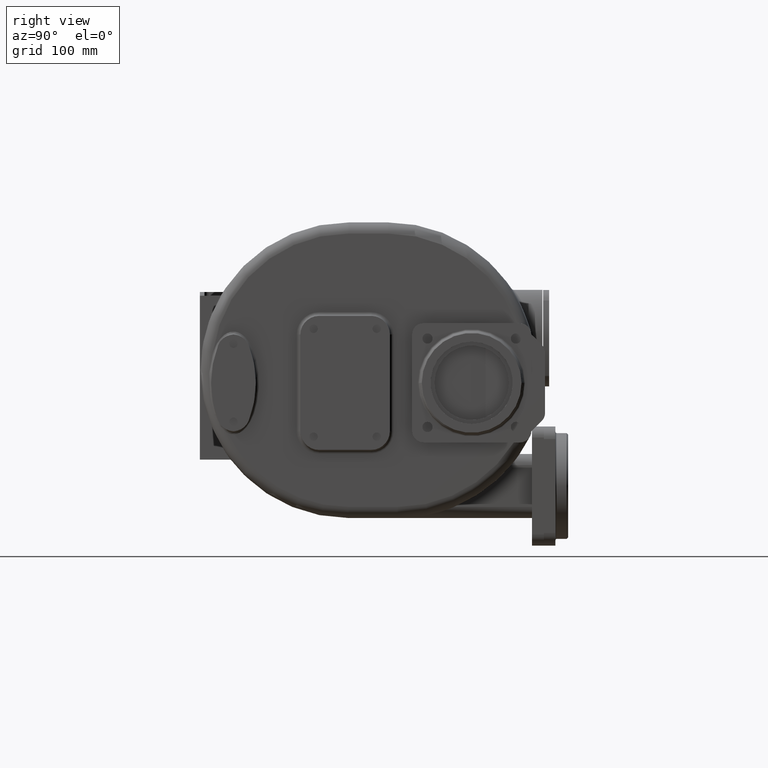
[diagram: clean part render]
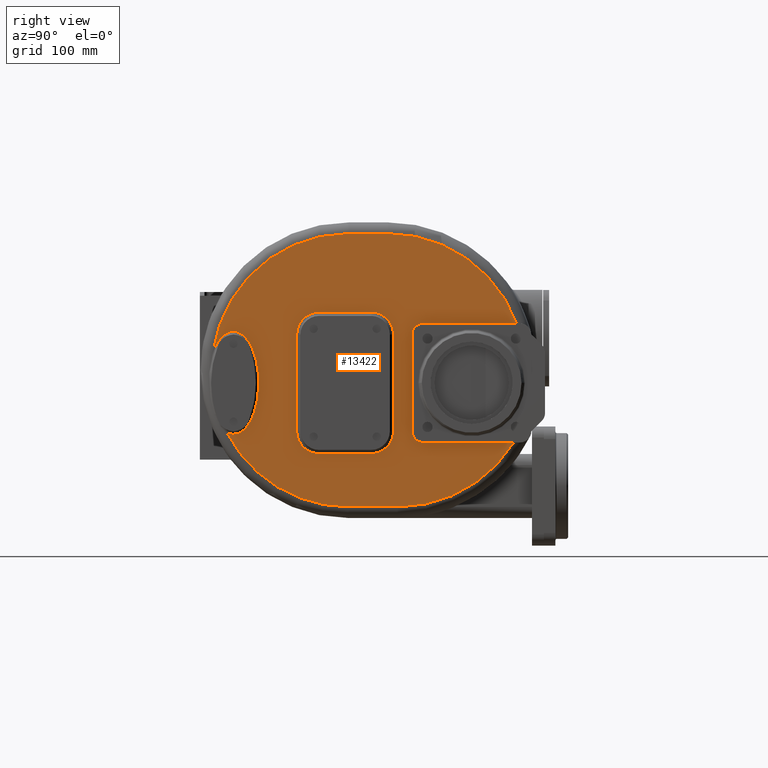
[diagram: same view with one face highlighted and labeled with its STEP entity id]
A machine part, right view. The second image highlights one B-rep face of the part: STEP entity #13422.
In plain terms, the highlighted planar face has unit normal (-1, 0, 0).
Its self-contained STEP definition (entity closure, byte-faithful):
#1564=DIRECTION('',(0.E0,1.E0,0.E0));
#1565=VECTOR('',#1564,1.216074309109E2);
#1566=CARTESIAN_POINT('',(1.85E2,3.E2,-9.7E1));
#1567=LINE('',#1566,#1565);
#1718=DIRECTION('',(0.E0,0.E0,-1.E0));
#1719=VECTOR('',#1718,1.3E2);
#1720=CARTESIAN_POINT('',(1.85E2,2.85E2,4.8E1));
#1721=LINE('',#1720,#1719);
#1726=CARTESIAN_POINT('',(1.85E2,3.E2,-8.2E1));
#1727=DIRECTION('',(-1.E0,0.E0,0.E0));
#1728=DIRECTION('',(0.E0,0.E0,-1.E0));
#1729=AXIS2_PLACEMENT_3D('',#1726,#1727,#1728);
#1731=CARTESIAN_POINT('',(1.850000005377E2,3.625590009268E1,-8.380700360577E1));
#1732=CARTESIAN_POINT('',(1.850000010474E2,3.644233185227E1,-8.390271979171E1));
#1733=CARTESIAN_POINT('',(1.849999995139E2,3.681483443033E1,-8.408726570567E1));
#1734=CARTESIAN_POINT('',(1.850000001302E2,3.737236600912E1,-8.434382731485E1));
#1735=CARTESIAN_POINT('',(1.849999999651E2,3.792832459514E1,-8.458042790233E1));
#1736=CARTESIAN_POINT('',(1.850000000094E2,3.848249259829E1,-8.479738974309E1));
#1737=CARTESIAN_POINT('',(1.849999999974E2,3.903461455280E1,-8.499507185047E1));
#1738=CARTESIAN_POINT('',(1.850000000009E2,3.958443812879E1,-8.517385338332E1));
#1739=CARTESIAN_POINT('',(1.849999999989E2,4.013180420925E1,-8.533409415977E1));
#1740=CARTESIAN_POINT('',(1.850000000034E2,4.067731638974E1,-8.547632499711E1));
#1741=CARTESIAN_POINT('',(1.849999999877E2,4.122150457814E1,-8.560105536925E1));
#1742=CARTESIAN_POINT('',(1.850000000460E2,4.176510983590E1,-8.570868341523E1));
#1743=CARTESIAN_POINT('',(1.849999998283E2,4.230805306893E1,-8.579930381958E1));
#1744=CARTESIAN_POINT('',(1.850000006406E2,4.284993283136E1,-8.587303444513E1));
#1745=CARTESIAN_POINT('',(1.849999976092E2,4.339042353394E1,-8.593007338048E1));
#1746=CARTESIAN_POINT('',(1.850000089227E2,4.392919762085E1,-8.597058278401E1));
#1747=CARTESIAN_POINT('',(1.849999666999E2,4.446599704520E1,-8.599466012178E1));
#1748=CARTESIAN_POINT('',(1.850000717517E2,4.482225118187E1,-8.599999905024E1));
#1749=CARTESIAN_POINT('',(1.850000711929E2,4.499999992839E1,-8.599999999620E1));
#1751=CARTESIAN_POINT('',(1.850000711929E2,4.499999992839E1,-8.599999999620E1));
#1752=CARTESIAN_POINT('',(1.850001252122E2,4.518950684331E1,-8.599989870260E1));
#1753=CARTESIAN_POINT('',(1.849999418888E2,4.556946980294E1,-8.599322555239E1));
#1754=CARTESIAN_POINT('',(1.850000155708E2,4.614285532402E1,-8.596554469983E1));
#1755=CARTESIAN_POINT('',(1.849999958278E2,4.671790287241E1,-8.591921490160E1));
#1756=CARTESIAN_POINT('',(1.850000011179E2,4.729342825618E1,-8.585447501856E1));
#1757=CARTESIAN_POINT('',(1.849999997004E2,4.786819630356E1,-8.577130638975E1));
#1758=CARTESIAN_POINT('',(1.850000000803E2,4.844056075272E1,-8.566993653368E1));
#1759=CARTESIAN_POINT('',(1.849999999785E2,4.901154720405E1,-8.555009547117E1));
#1760=CARTESIAN_POINT('',(1.850000000058E2,4.958341881687E1,-8.541092378018E1));
#1761=CARTESIAN_POINT('',(1.849999999985E2,5.015822642245E1,-8.525168364917E1));
#1762=CARTESIAN_POINT('',(1.850000000004E2,5.073614453723E1,-8.507193670991E1));
#1763=CARTESIAN_POINT('',(1.849999999999E2,5.131729604752E1,-8.487119471345E1));
#1764=CARTESIAN_POINT('',(1.85E2,5.190171732239E1,-8.464891730547E1));
#1765=CARTESIAN_POINT('',(1.85E2,5.248934587449E1,-8.440452518904E1));
#1766=CARTESIAN_POINT('',(1.85E2,5.307995156450E1,-8.413744288156E1));
#1767=CARTESIAN_POINT('',(1.85E2,5.367325762158E1,-8.384703677398E1));
#1768=CARTESIAN_POINT('',(1.85E2,5.426876653845E1,-8.353276263190E1));
#1769=CARTESIAN_POINT('',(1.85E2,5.486700629484E1,-8.319367839178E1));
#1770=CARTESIAN_POINT('',(1.85E2,5.546920099925E1,-8.282824995882E1));
#1771=CARTESIAN_POINT('',(1.85E2,5.607631298691E1,-8.243486265218E1));
#1772=CARTESIAN_POINT('',(1.85E2,5.668876844080E1,-8.201204680469E1));
#1773=CARTESIAN_POINT('',(1.85E2,5.730606315073E1,-8.155888062092E1));
#1774=CARTESIAN_POINT('',(1.85E2,5.792760292688E1,-8.107452987500E1));
#1775=CARTESIAN_POINT('',(1.85E2,5.855335905495E1,-8.055758564383E1));
#1776=CARTESIAN_POINT('',(1.85E2,5.918397150765E1,-8.000596171991E1));
#1777=CARTESIAN_POINT('',(1.85E2,5.981972614713E1,-7.941770282844E1));
#1778=CARTESIAN_POINT('',(1.85E2,6.046065919755E1,-7.879100216395E1));
#1779=CARTESIAN_POINT('',(1.85E2,6.110666118275E1,-7.812406059830E1));
#1780=CARTESIAN_POINT('',(1.85E2,6.175767607498E1,-7.741461600119E1));
#1781=CARTESIAN_POINT('',(1.85E2,6.241353893448E1,-7.666046138290E1));
#1782=CARTESIAN_POINT('',(1.85E2,6.307392394965E1,-7.585961432962E1));
#1783=CARTESIAN_POINT('',(1.85E2,6.373847933698E1,-7.500974785608E1));
#1784=CARTESIAN_POINT('',(1.85E2,6.440694003495E1,-7.410809943113E1));
#1785=CARTESIAN_POINT('',(1.85E2,6.507891382813E1,-7.315217800947E1));
#1786=CARTESIAN_POINT('',(1.85E2,6.575381821424E1,-7.213940442307E1));
#1787=CARTESIAN_POINT('',(1.85E2,6.643084945217E1,-7.106700698512E1));
#1788=CARTESIAN_POINT('',(1.85E2,6.710919631253E1,-6.993251973891E1));
#1789=CARTESIAN_POINT('',(1.85E2,6.778781744856E1,-6.873333426582E1));
#1790=CARTESIAN_POINT('',(1.85E2,6.846552408881E1,-6.746676728806E1));
#1791=CARTESIAN_POINT('',(1.85E2,6.914112449358E1,-6.613040379644E1));
#1792=CARTESIAN_POINT('',(1.85E2,6.981299159798E1,-6.472181303130E1));
#1793=CARTESIAN_POINT('',(1.85E2,7.047960206289E1,-6.323881832511E1));
#1794=CARTESIAN_POINT('',(1.85E2,7.113901559639E1,-6.167942909323E1));
#1795=CARTESIAN_POINT('',(1.85E2,7.178934349214E1,-6.004185513991E1));
#1796=CARTESIAN_POINT('',(1.85E2,7.242830233693E1,-5.832477658584E1));
#1797=CARTESIAN_POINT('',(1.85E2,7.305364066987E1,-5.652714015464E1));
#1798=CARTESIAN_POINT('',(1.85E2,7.366275183164E1,-5.464849392524E1));
#1799=CARTESIAN_POINT('',(1.85E2,7.425312341134E1,-5.268866940943E1));
#1800=CARTESIAN_POINT('',(1.85E2,7.482187926457E1,-5.064830980052E1));
#1801=CARTESIAN_POINT('',(1.85E2,7.536633102629E1,-4.852833233359E1));
#1802=CARTESIAN_POINT('',(1.85E2,7.588342740316E1,-4.633073034330E1));
#1803=CARTESIAN_POINT('',(1.85E2,7.637040060691E1,-4.405772228374E1));
#1804=CARTESIAN_POINT('',(1.85E2,7.682419360171E1,-4.171279891077E1));
#1805=CARTESIAN_POINT('',(1.85E2,7.724207719205E1,-3.929961601283E1));
#1806=CARTESIAN_POINT('',(1.85E2,7.762121705471E1,-3.682316573896E1));
#1807=CARTESIAN_POINT('',(1.85E2,7.795902742657E1,-3.428871071122E1));
#1808=CARTESIAN_POINT('',(1.85E2,7.825316915739E1,-3.170247622063E1));
#1809=CARTESIAN_POINT('',(1.85E2,7.850134511008E1,-2.907135330018E1));
#1810=CARTESIAN_POINT('',(1.85E2,7.870187448035E1,-2.640248987455E1));
#1811=CARTESIAN_POINT('',(1.85E2,7.885304046993E1,-2.370409072312E1));
#1812=CARTESIAN_POINT('',(1.85E2,7.895375342613E1,-2.098425461856E1));
#1813=CARTESIAN_POINT('',(1.85E2,7.900324092879E1,-1.825168290558E1));
#1814=CARTESIAN_POINT('',(1.85E2,7.900098781827E1,-1.551523666799E1));
#1815=CARTESIAN_POINT('',(1.85E2,7.894719500861E1,-1.278374435512E1));
#1816=CARTESIAN_POINT('',(1.85E2,7.884216264602E1,-1.006591450731E1));
#1817=CARTESIAN_POINT('',(1.85E2,7.868676166932E1,-7.370535469734E0));
#1818=CARTESIAN_POINT('',(1.85E2,7.848232314442E1,-4.705716672129E0));
#1819=CARTESIAN_POINT('',(1.85E2,7.823023659222E1,-2.079207344545E0));
#1820=CARTESIAN_POINT('',(1.85E2,7.793259805944E1,5.013647148972E-1));
#1821=CARTESIAN_POINT('',(1.85E2,7.759147194115E1,3.029710909365E0));
#1822=CARTESIAN_POINT('',(1.85E2,7.720928791931E1,5.499405603073E0));
#1823=CARTESIAN_POINT('',(1.85E2,7.678876281844E1,7.905282605819E0));
#1824=CARTESIAN_POINT('',(1.85E2,7.633249191919E1,1.024269332079E1));
#1825=CARTESIAN_POINT('',(1.85E2,7.584353498817E1,1.250762699480E1));
#1826=CARTESIAN_POINT('',(1.85E2,7.532460537244E1,1.469717380367E1));
#1827=CARTESIAN_POINT('',(1.85E2,7.477880358759E1,1.680869239518E1));
#1828=CARTESIAN_POINT('',(1.85E2,7.420886448877E1,1.884072404745E1));
#1829=CARTESIAN_POINT('',(1.85E2,7.361774827512E1,2.079201015275E1));
#1830=CARTESIAN_POINT('',(1.85E2,7.300807439108E1,2.266228769933E1));
#1831=CARTESIAN_POINT('',(1.85E2,7.238256612715E1,2.445151260150E1));
#1832=CARTESIAN_POINT('',(1.85E2,7.174360569278E1,2.616041002525E1));
#1833=CARTESIAN_POINT('',(1.85E2,7.109361378832E1,2.778992212320E1));
#1834=CARTESIAN_POINT('',(1.85E2,7.043467186250E1,2.934152890162E1));
#1835=CARTESIAN_POINT('',(1.85E2,6.976885832766E1,3.081689665170E1));
#1836=CARTESIAN_POINT('',(1.85E2,6.909792427296E1,3.221809702129E1));
#1837=CARTESIAN_POINT('',(1.85E2,6.842354274433E1,3.354729396418E1));
#1838=CARTESIAN_POINT('',(1.85E2,6.774721054479E1,3.480693316483E1));
#1839=CARTESIAN_POINT('',(1.85E2,6.707015733650E1,3.599941680132E1));
#1840=CARTESIAN_POINT('',(1.85E2,6.639364343639E1,3.712746266736E1));
#1841=CARTESIAN_POINT('',(1.85E2,6.571853002673E1,3.819364170201E1));
#1842=CARTESIAN_POINT('',(1.85E2,6.504561792590E1,3.920068128407E1));
#1843=CARTESIAN_POINT('',(1.85E2,6.437568578852E1,4.015133665570E1));
#1844=CARTESIAN_POINT('',(1.85E2,6.370916111379E1,4.104814521698E1));
#1845=CARTESIAN_POINT('',(1.85E2,6.304638184767E1,4.189380253273E1));
#1846=CARTESIAN_POINT('',(1.85E2,6.238783783456E1,4.269077678348E1));
#1847=CARTESIAN_POINT('',(1.85E2,6.173375724101E1,4.344131690342E1));
#1848=CARTESIAN_POINT('',(1.85E2,6.108421512661E1,4.414777606723E1));
#1849=CARTESIAN_POINT('',(1.85E2,6.043944642871E1,4.481230613829E1));
#1850=CARTESIAN_POINT('',(1.85E2,5.979954639988E1,4.543685539750E1));
#1851=CARTESIAN_POINT('',(1.85E2,5.916442836045E1,4.602341481491E1));
#1852=CARTESIAN_POINT('',(1.85E2,5.853413008023E1,4.657381022052E1));
#1853=CARTESIAN_POINT('',(1.85E2,5.790862846089E1,4.708970054215E1));
#1854=CARTESIAN_POINT('',(1.85E2,5.728772460407E1,4.757274691636E1));
#1855=CARTESIAN_POINT('',(1.85E2,5.667133613891E1,4.802443759764E1));
#1856=CARTESIAN_POINT('',(1.85E2,5.605936994374E1,4.844613912642E1));
#1857=CARTESIAN_POINT('',(1.85E2,5.545158233253E1,4.883919578085E1));
#1858=CARTESIAN_POINT('',(1.85E2,5.484785081526E1,4.920476920419E1));
#1859=CARTESIAN_POINT('',(1.85E2,5.424805552540E1,4.954395436310E1));
#1860=CARTESIAN_POINT('',(1.85E2,5.365196738629E1,4.985780495307E1));
#1861=CARTESIAN_POINT('',(1.85E2,5.305931618534E1,5.014728002577E1));
#1862=CARTESIAN_POINT('',(1.85E2,5.246979983289E1,5.041331324403E1));
#1863=CARTESIAN_POINT('',(1.85E2,5.188309189676E1,5.065672244706E1));
#1864=CARTESIAN_POINT('',(1.849999999999E2,5.129915568915E1,5.087809952217E1));
#1865=CARTESIAN_POINT('',(1.850000000002E2,5.071795471106E1,5.107808157176E1));
#1866=CARTESIAN_POINT('',(1.849999999991E2,5.013934085642E1,5.125725583326E1));
#1867=CARTESIAN_POINT('',(1.850000000033E2,4.956272474974E1,5.141620161068E1));
#1868=CARTESIAN_POINT('',(1.849999999875E2,4.898758472486E1,5.155547560170E1));
#1869=CARTESIAN_POINT('',(1.850000000466E2,4.841323091236E1,5.167556339485E1));
#1870=CARTESIAN_POINT('',(1.849999998262E2,4.783983670476E1,5.177660684976E1));
#1871=CARTESIAN_POINT('',(1.850000006485E2,4.726778398452E1,5.185873901405E1));
#1872=CARTESIAN_POINT('',(1.849999975798E2,4.669741570136E1,5.192222837044E1));
#1873=CARTESIAN_POINT('',(1.850000090325E2,4.612906037439E1,5.196729468082E1));
#1874=CARTESIAN_POINT('',(1.849999662903E2,4.556296935055E1,5.199407075726E1));
#1875=CARTESIAN_POINT('',(1.850000726344E2,4.518737295131E1,5.199999891831E1));
#1876=CARTESIAN_POINT('',(1.850000719978E2,4.500000007358E1,5.199999999610E1));
#1878=CARTESIAN_POINT('',(1.850000719978E2,4.500000007358E1,5.199999999610E1));
#1879=CARTESIAN_POINT('',(1.850001267406E2,4.481104877648E1,5.199989710667E1));
#1880=CARTESIAN_POINT('',(1.849999411795E2,4.443209167657E1,5.199324911120E1));
#1881=CARTESIAN_POINT('',(1.850000157609E2,4.385983143286E1,5.196568575622E1));
#1882=CARTESIAN_POINT('',(1.849999957769E2,4.328572785387E1,5.191952317161E1));
#1883=CARTESIAN_POINT('',(1.850000011316E2,4.271109534493E1,5.185500713247E1));
#1884=CARTESIAN_POINT('',(1.849999996968E2,4.213731854506E1,5.177213984082E1));
#1885=CARTESIAN_POINT('',(1.850000000812E2,4.156618035811E1,5.167119011036E1));
#1886=CARTESIAN_POINT('',(1.849999999782E2,4.099647119165E1,5.155188139042E1));
#1887=CARTESIAN_POINT('',(1.850000000058E2,4.042593302348E1,5.141334805671E1));
#1888=CARTESIAN_POINT('',(1.849999999984E2,3.985262508561E1,5.125487010647E1));
#1889=CARTESIAN_POINT('',(1.850000000004E2,3.927632647611E1,5.107602296878E1));
#1890=CARTESIAN_POINT('',(1.849999999999E2,3.869678735023E1,5.087628877304E1));
#1891=CARTESIAN_POINT('',(1.85E2,3.811385592961E1,5.065508802725E1));
#1892=CARTESIAN_POINT('',(1.85E2,3.752754232303E1,5.041181312395E1));
#1893=CARTESIAN_POINT('',(1.85E2,3.693820782815E1,5.014593994828E1));
#1894=CARTESIAN_POINT('',(1.85E2,3.634620210372E1,4.985688601010E1));
#1895=CARTESIAN_POINT('',(1.85E2,3.575217335100E1,4.954418577109E1));
#1896=CARTESIAN_POINT('',(1.85E2,3.515538192979E1,4.920678767335E1));
#1897=CARTESIAN_POINT('',(1.85E2,3.455459162316E1,4.884315301035E1));
#1898=CARTESIAN_POINT('',(1.85E2,3.394876887882E1,4.845161880231E1));
#1899=CARTESIAN_POINT('',(1.85E2,3.333765505204E1,4.803082767401E1));
#1900=CARTESIAN_POINT('',(1.85E2,3.272176433756E1,4.757988051193E1));
#1901=CARTESIAN_POINT('',(1.85E2,3.210171542287E1,4.709799173881E1));
#1902=CARTESIAN_POINT('',(1.85E2,3.147741630684E1,4.658368658378E1));
#1903=CARTESIAN_POINT('',(1.85E2,3.084834757465E1,4.603497749444E1));
#1904=CARTESIAN_POINT('',(1.85E2,3.021427767288E1,4.544998579026E1));
#1905=CARTESIAN_POINT('',(1.85E2,2.957503325135E1,4.482678086557E1));
#1906=CARTESIAN_POINT('',(1.85E2,2.893059157455E1,4.416347971534E1));
#1907=CARTESIAN_POINT('',(1.85E2,2.828109530975E1,4.345792199950E1));
#1908=CARTESIAN_POINT('',(1.85E2,2.76268049E1,4.270800238143E1));
#1909=CARTESIAN_POINT('',(1.85E2,2.696814925223E1,4.191186811357E1));
#1910=CARTESIAN_POINT('',(1.85E2,2.630540192496E1,4.106723291169E1));
#1911=CARTESIAN_POINT('',(1.85E2,2.563881894602E1,4.017133731290E1));
#1912=CARTESIAN_POINT('',(1.849999999998E2,2.496879187446E1,3.922167441618E1));
#1913=CARTESIAN_POINT('',(1.850000000006E2,2.429586468350E1,3.821577892319E1));
#1914=CARTESIAN_POINT('',(1.849999999978E2,2.362088801954E1,3.715098452631E1));
#1915=CARTESIAN_POINT('',(1.850000000083E2,2.294474268941E1,3.602493122796E1));
#1916=CARTESIAN_POINT('',(1.849999999692E2,2.226832437395E1,3.483503023584E1));
#1917=CARTESIAN_POINT('',(1.850000001151E2,2.159273995515E1,3.357841062375E1));
#1918=CARTESIAN_POINT('',(1.849999995706E2,2.091912409746E1,3.225263469886E1));
#1919=CARTESIAN_POINT('',(1.850000016025E2,2.024922447930E1,3.085567739919E1));
#1920=CARTESIAN_POINT('',(1.849999940194E2,1.958472336326E1,2.938571740279E1));
#1921=CARTESIAN_POINT('',(1.850000223200E2,1.892733010295E1,2.784062397819E1));
#1922=CARTESIAN_POINT('',(1.849999167007E2,1.827888125732E1,2.621846207342E1));
#1923=CARTESIAN_POINT('',(1.850001794850E2,1.785375017846E1,2.508413205959E1));
#1924=CARTESIAN_POINT('',(1.850001806549E2,1.764340803706E1,2.450367455748E1));
#1926=CARTESIAN_POINT('',(1.85E2,1.995E2,0.E0));
#1927=DIRECTION('',(1.E0,0.E0,0.E0));
#1928=DIRECTION('',(0.E0,0.E0,1.E0));
#1929=AXIS2_PLACEMENT_3D('',#1926,#1927,#1928);
#1931=DIRECTION('',(0.E0,-1.E0,0.E0));
#1932=VECTOR('',#1931,5.338915899923E1);
#1933=CARTESIAN_POINT('',(1.85E2,2.528891589992E2,1.835E2));
#1934=LINE('',#1933,#1932);
#1935=CARTESIAN_POINT('',(1.85E2,2.528891589992E2,0.E0));
#1936=DIRECTION('',(1.E0,0.E0,0.E0));
#1937=DIRECTION('',(0.E0,9.392169392074E-1,3.433242506812E-1));
#1938=AXIS2_PLACEMENT_3D('',#1935,#1936,#1937);
#1940=CARTESIAN_POINT('',(1.85E2,2.658407785106E2,0.E0));
#1941=DIRECTION('',(1.E0,0.E0,0.E0));
#1942=DIRECTION('',(0.E0,0.E0,-1.E0));
#1943=AXIS2_PLACEMENT_3D('',#1940,#1941,#1942);
#1945=DIRECTION('',(0.E0,1.E0,0.E0));
#1946=VECTOR('',#1945,6.634077851062E1);
#1947=CARTESIAN_POINT('',(1.85E2,1.995E2,-1.835E2));
#1948=LINE('',#1947,#1946);
#1949=CARTESIAN_POINT('',(1.85E2,1.995E2,0.E0));
#1950=DIRECTION('',(1.E0,0.E0,0.E0));
#1951=DIRECTION('',(0.E0,-8.896136235749E-1,-4.567139156517E-1));
#1952=AXIS2_PLACEMENT_3D('',#1949,#1950,#1951);
#1954=DIRECTION('',(0.E0,4.788839410549E-12,1.E0));
#1955=VECTOR('',#1954,1.299999999984E2);
#1956=CARTESIAN_POINT('',(1.85E2,2.599999999989E2,-8.199999999904E1));
#1957=LINE('',#1956,#1955);
#1958=CARTESIAN_POINT('',(1.85E2,2.3E2,4.8E1));
#1959=DIRECTION('',(1.E0,0.E0,0.E0));
#1960=DIRECTION('',(0.E0,1.E0,0.E0));
#1961=AXIS2_PLACEMENT_3D('',#1958,#1959,#1960);
#1963=DIRECTION('',(0.E0,-1.E0,8.894167942032E-12));
#1964=VECTOR('',#1963,6.999999999837E1);
#1965=CARTESIAN_POINT('',(1.85E2,2.299999999990E2,7.799999999892E1));
#1966=LINE('',#1965,#1964);
#1967=CARTESIAN_POINT('',(1.85E2,1.6E2,4.8E1));
#1968=DIRECTION('',(1.E0,0.E0,0.E0));
#1969=DIRECTION('',(0.E0,0.E0,1.E0));
#1970=AXIS2_PLACEMENT_3D('',#1967,#1968,#1969);
#1972=DIRECTION('',(0.E0,-4.789058039083E-12,-1.E0));
#1973=VECTOR('',#1972,1.299999999984E2);
#1974=CARTESIAN_POINT('',(1.85E2,1.300000000011E2,4.799999999904E1));
#1975=LINE('',#1974,#1973);
#1976=CARTESIAN_POINT('',(1.85E2,1.6E2,-8.2E1));
#1977=DIRECTION('',(1.E0,0.E0,0.E0));
#1978=DIRECTION('',(0.E0,-1.E0,0.E0));
#1979=AXIS2_PLACEMENT_3D('',#1976,#1977,#1978);
#1981=DIRECTION('',(0.E0,1.E0,-8.894167942032E-12));
#1982=VECTOR('',#1981,6.999999999837E1);
#1983=CARTESIAN_POINT('',(1.85E2,1.600000000010E2,-1.119999999989E2));
#1984=LINE('',#1983,#1982);
#1985=CARTESIAN_POINT('',(1.85E2,2.3E2,-8.2E1));
#1986=DIRECTION('',(1.E0,0.E0,0.E0));
#1987=DIRECTION('',(0.E0,0.E0,-1.E0));
#1988=AXIS2_PLACEMENT_3D('',#1985,#1986,#1987);
#2033=CARTESIAN_POINT('',(1.850001806549E2,1.764340803706E1,2.450367455748E1));
#3314=DIRECTION('',(0.E0,-1.E0,0.E0));
#3315=VECTOR('',#3314,1.252354673438E2);
#3316=CARTESIAN_POINT('',(1.85E2,4.252354673438E2,6.3E1));
#3317=LINE('',#3316,#3315);
#3322=CARTESIAN_POINT('',(1.85E2,3.E2,4.8E1));
#3323=DIRECTION('',(-1.E0,0.E0,0.E0));
#3324=DIRECTION('',(0.E0,-1.E0,0.E0));
#3325=AXIS2_PLACEMENT_3D('',#3322,#3323,#3324);
#9876=CARTESIAN_POINT('',(1.85E2,2.85E2,4.8E1));
#9877=CARTESIAN_POINT('',(1.85E2,2.85E2,-8.2E1));
#9878=VERTEX_POINT('',#9876);
#9879=VERTEX_POINT('',#9877);
#9880=CARTESIAN_POINT('',(1.85E2,3.E2,-9.7E1));
#9881=VERTEX_POINT('',#9880);
#9882=CARTESIAN_POINT('',(1.85E2,3.E2,6.3E1));
#9883=VERTEX_POINT('',#9882);
#9888=CARTESIAN_POINT('',(1.85E2,2.658407785106E2,-1.835E2));
#9889=CARTESIAN_POINT('',(1.85E2,4.216074309109E2,-9.7E1));
#9890=VERTEX_POINT('',#9888);
#9891=VERTEX_POINT('',#9889);
#9892=CARTESIAN_POINT('',(1.85E2,1.995E2,-1.835E2));
#9893=VERTEX_POINT('',#9892);
#9898=CARTESIAN_POINT('',(1.85E2,2.528891589992E2,1.835E2));
#9899=CARTESIAN_POINT('',(1.85E2,1.995E2,1.835E2));
#9900=VERTEX_POINT('',#9898);
#9901=VERTEX_POINT('',#9899);
#9904=CARTESIAN_POINT('',(1.85E2,4.252354673438E2,6.3E1));
#9905=VERTEX_POINT('',#9904);
#9964=VERTEX_POINT('',#1731);
#9965=VERTEX_POINT('',#1749);
#9967=VERTEX_POINT('',#1876);
#9968=VERTEX_POINT('',#2033);
#9975=CARTESIAN_POINT('',(1.85E2,2.599999999989E2,-8.199999999904E1));
#9976=CARTESIAN_POINT('',(1.85E2,2.599999999995E2,4.799999999933E1));
#9977=VERTEX_POINT('',#9975);
#9978=VERTEX_POINT('',#9976);
#9979=CARTESIAN_POINT('',(1.85E2,2.3E2,7.8E1));
#9980=VERTEX_POINT('',#9979);
#9983=CARTESIAN_POINT('',(1.85E2,1.600000000007E2,7.799999999954E1));
#9984=VERTEX_POINT('',#9983);
#9987=CARTESIAN_POINT('',(1.85E2,1.3E2,4.8E1));
#9988=VERTEX_POINT('',#9987);
#9991=CARTESIAN_POINT('',(1.85E2,1.300000000005E2,-8.199999999933E1));
#9992=VERTEX_POINT('',#9991);
#9995=CARTESIAN_POINT('',(1.85E2,2.3E2,-1.12E2));
#9996=VERTEX_POINT('',#9995);
#9999=CARTESIAN_POINT('',(1.85E2,1.600000000010E2,-1.119999999989E2));
#10000=VERTEX_POINT('',#9999);
#13372=CARTESIAN_POINT('',(1.85E2,2.E2,0.E0));
#13373=DIRECTION('',(-1.E0,0.E0,0.E0));
#13374=DIRECTION('',(0.E0,0.E0,1.E0));
#13375=AXIS2_PLACEMENT_3D('',#13372,#13373,#13374);
#13376=PLANE('',#13375);
#13378=ORIENTED_EDGE('',*,*,#13377,.T.);
#13380=ORIENTED_EDGE('',*,*,#13379,.T.);
#13382=ORIENTED_EDGE('',*,*,#13381,.T.);
#13384=ORIENTED_EDGE('',*,*,#13383,.F.);
#13386=ORIENTED_EDGE('',*,*,#13385,.F.);
#13388=ORIENTED_EDGE('',*,*,#13387,.F.);
#13390=ORIENTED_EDGE('',*,*,#13389,.T.);
#13392=ORIENTED_EDGE('',*,*,#13391,.F.);
#13393=ORIENTED_EDGE('',*,*,#13352,.T.);
#13394=ORIENTED_EDGE('',*,*,#13364,.F.);
#13395=ORIENTED_EDGE('',*,*,#13169,.T.);
#13397=ORIENTED_EDGE('',*,*,#13396,.F.);
#13399=ORIENTED_EDGE('',*,*,#13398,.F.);
#13401=ORIENTED_EDGE('',*,*,#13400,.F.);
#13402=EDGE_LOOP('',(#13378,#13380,#13382,#13384,#13386,#13388,#13390,#13392,
#13393,#13394,#13395,#13397,#13399,#13401));
#13403=FACE_OUTER_BOUND('',#13402,.F.);
#13405=ORIENTED_EDGE('',*,*,#13404,.T.);
#13407=ORIENTED_EDGE('',*,*,#13406,.T.);
#13409=ORIENTED_EDGE('',*,*,#13408,.T.);
#13411=ORIENTED_EDGE('',*,*,#13410,.T.);
#13413=ORIENTED_EDGE('',*,*,#13412,.T.);
#13415=ORIENTED_EDGE('',*,*,#13414,.T.);
#13417=ORIENTED_EDGE('',*,*,#13416,.T.);
#13419=ORIENTED_EDGE('',*,*,#13418,.T.);
#13420=EDGE_LOOP('',(#13405,#13407,#13409,#13411,#13413,#13415,#13417,#13419));
#13421=FACE_BOUND('',#13420,.F.);
#13422=ADVANCED_FACE('',(#13403,#13421),#13376,.F.);
#1730=CIRCLE('',#1729,1.5E1);
#1750=B_SPLINE_CURVE_WITH_KNOTS('',3,(#1731,#1732,#1733,#1734,#1735,#1736,#1737,
#1738,#1739,#1740,#1741,#1742,#1743,#1744,#1745,#1746,#1747,#1748,#1749),
.UNSPECIFIED.,.F.,.F.,(4,1,1,1,1,1,1,1,1,1,1,1,1,1,1,1,4),(0.E0,6.25E-2,1.25E-1,
1.875E-1,2.5E-1,3.125E-1,3.75E-1,4.375E-1,5.E-1,5.625E-1,6.25E-1,6.875E-1,
7.5E-1,8.125E-1,8.75E-1,9.375E-1,1.E0),.UNSPECIFIED.);
#1877=B_SPLINE_CURVE_WITH_KNOTS('',3,(#1751,#1752,#1753,#1754,#1755,#1756,#1757,
#1758,#1759,#1760,#1761,#1762,#1763,#1764,#1765,#1766,#1767,#1768,#1769,#1770,
#1771,#1772,#1773,#1774,#1775,#1776,#1777,#1778,#1779,#1780,#1781,#1782,#1783,
#1784,#1785,#1786,#1787,#1788,#1789,#1790,#1791,#1792,#1793,#1794,#1795,#1796,
#1797,#1798,#1799,#1800,#1801,#1802,#1803,#1804,#1805,#1806,#1807,#1808,#1809,
#1810,#1811,#1812,#1813,#1814,#1815,#1816,#1817,#1818,#1819,#1820,#1821,#1822,
#1823,#1824,#1825,#1826,#1827,#1828,#1829,#1830,#1831,#1832,#1833,#1834,#1835,
#1836,#1837,#1838,#1839,#1840,#1841,#1842,#1843,#1844,#1845,#1846,#1847,#1848,
#1849,#1850,#1851,#1852,#1853,#1854,#1855,#1856,#1857,#1858,#1859,#1860,#1861,
#1862,#1863,#1864,#1865,#1866,#1867,#1868,#1869,#1870,#1871,#1872,#1873,#1874,
#1875,#1876),.UNSPECIFIED.,.F.,.F.,(4,1,1,1,1,1,1,1,1,1,1,1,1,1,1,1,1,1,1,1,1,1,
1,1,1,1,1,1,1,1,1,1,1,1,1,1,1,1,1,1,1,1,1,1,1,1,1,1,1,1,1,1,1,1,1,1,1,1,1,1,1,1,
1,1,1,1,1,1,1,1,1,1,1,1,1,1,1,1,1,1,1,1,1,1,1,1,1,1,1,1,1,1,1,1,1,1,1,1,1,1,1,1,
1,1,1,1,1,1,1,1,1,1,1,1,1,1,1,1,1,1,1,1,1,4),(0.E0,8.130081300813E-3,
1.626016260163E-2,2.439024390244E-2,3.252032520325E-2,4.065040650407E-2,
4.878048780488E-2,5.691056910569E-2,6.504065040650E-2,7.317073170732E-2,
8.130081300813E-2,8.943089430894E-2,9.756097560976E-2,1.056910569106E-1,
1.138211382114E-1,1.219512195122E-1,1.300813008130E-1,1.382113821138E-1,
1.463414634146E-1,1.544715447154E-1,1.626016260163E-1,1.707317073171E-1,
1.788617886179E-1,1.869918699187E-1,1.951219512195E-1,2.032520325203E-1,
2.113821138211E-1,2.195121951220E-1,2.276422764228E-1,2.357723577236E-1,
2.439024390244E-1,2.520325203252E-1,2.601626016260E-1,2.682926829268E-1,
2.764227642276E-1,2.845528455285E-1,2.926829268293E-1,3.008130081301E-1,
3.089430894309E-1,3.170731707317E-1,3.252032520325E-1,3.333333333333E-1,
3.414634146341E-1,3.495934959350E-1,3.577235772358E-1,3.658536585366E-1,
3.739837398374E-1,3.821138211382E-1,3.902439024390E-1,3.983739837398E-1,
4.065040650407E-1,4.146341463415E-1,4.227642276423E-1,4.308943089431E-1,
4.390243902439E-1,4.471544715447E-1,4.552845528455E-1,4.634146341463E-1,
4.715447154472E-1,4.796747967480E-1,4.878048780488E-1,4.959349593496E-1,
5.040650406504E-1,5.121951219512E-1,5.203252032520E-1,5.284552845528E-1,
5.365853658537E-1,5.447154471545E-1,5.528455284553E-1,5.609756097561E-1,
5.691056910569E-1,5.772357723577E-1,5.853658536585E-1,5.934959349593E-1,
6.016260162602E-1,6.097560975610E-1,6.178861788618E-1,6.260162601626E-1,
6.341463414634E-1,6.422764227642E-1,6.504065040650E-1,6.585365853659E-1,
6.666666666667E-1,6.747967479675E-1,6.829268292683E-1,6.910569105691E-1,
6.991869918699E-1,7.073170731707E-1,7.154471544715E-1,7.235772357724E-1,
7.317073170732E-1,7.398373983740E-1,7.479674796748E-1,7.560975609756E-1,
7.642276422764E-1,7.723577235772E-1,7.804878048780E-1,7.886178861789E-1,
7.967479674797E-1,8.048780487805E-1,8.130081300813E-1,8.211382113821E-1,
8.292682926829E-1,8.373983739837E-1,8.455284552846E-1,8.536585365854E-1,
8.617886178862E-1,8.699186991870E-1,8.780487804878E-1,8.861788617886E-1,
8.943089430894E-1,9.024390243902E-1,9.105691056911E-1,9.186991869919E-1,
9.268292682927E-1,9.349593495935E-1,9.430894308943E-1,9.512195121951E-1,
9.593495934959E-1,9.674796747967E-1,9.756097560976E-1,9.837398373984E-1,
9.918699186992E-1,1.E0),.UNSPECIFIED.);
#1925=B_SPLINE_CURVE_WITH_KNOTS('',3,(#1878,#1879,#1880,#1881,#1882,#1883,#1884,
#1885,#1886,#1887,#1888,#1889,#1890,#1891,#1892,#1893,#1894,#1895,#1896,#1897,
#1898,#1899,#1900,#1901,#1902,#1903,#1904,#1905,#1906,#1907,#1908,#1909,#1910,
#1911,#1912,#1913,#1914,#1915,#1916,#1917,#1918,#1919,#1920,#1921,#1922,#1923,
#1924),.UNSPECIFIED.,.F.,.F.,(4,1,1,1,1,1,1,1,1,1,1,1,1,1,1,1,1,1,1,1,1,1,1,1,1,
1,1,1,1,1,1,1,1,1,1,1,1,1,1,1,1,1,1,1,4),(0.E0,2.272727272727E-2,
4.545454545455E-2,6.818181818182E-2,9.090909090909E-2,1.136363636364E-1,
1.363636363636E-1,1.590909090909E-1,1.818181818182E-1,2.045454545455E-1,
2.272727272727E-1,2.5E-1,2.727272727273E-1,2.954545454545E-1,3.181818181818E-1,
3.409090909091E-1,3.636363636364E-1,3.863636363636E-1,4.090909090909E-1,
4.318181818182E-1,4.545454545455E-1,4.772727272727E-1,5.E-1,5.227272727273E-1,
5.454545454545E-1,5.681818181818E-1,5.909090909091E-1,6.136363636364E-1,
6.363636363636E-1,6.590909090909E-1,6.818181818182E-1,7.045454545455E-1,
7.272727272727E-1,7.5E-1,7.727272727273E-1,7.954545454545E-1,8.181818181818E-1,
8.409090909091E-1,8.636363636364E-1,8.863636363636E-1,9.090909090909E-1,
9.318181818182E-1,9.545454545455E-1,9.772727272727E-1,1.E0),.UNSPECIFIED.);
#1930=CIRCLE('',#1929,1.835E2);
#1939=CIRCLE('',#1938,1.835E2);
#1944=CIRCLE('',#1943,1.835E2);
#1953=CIRCLE('',#1952,1.835E2);
#1962=CIRCLE('',#1961,3.E1);
#1971=CIRCLE('',#1970,3.E1);
#1980=CIRCLE('',#1979,3.E1);
#1989=CIRCLE('',#1988,3.E1);
#3326=CIRCLE('',#3325,1.5E1);
#13169=EDGE_CURVE('',#9881,#9891,#1567,.T.);
#13352=EDGE_CURVE('',#9878,#9879,#1721,.T.);
#13364=EDGE_CURVE('',#9881,#9879,#1730,.T.);
#13377=EDGE_CURVE('',#9964,#9965,#1750,.T.);
#13379=EDGE_CURVE('',#9965,#9967,#1877,.T.);
#13381=EDGE_CURVE('',#9967,#9968,#1925,.T.);
#13383=EDGE_CURVE('',#9901,#9968,#1930,.T.);
#13385=EDGE_CURVE('',#9900,#9901,#1934,.T.);
#13387=EDGE_CURVE('',#9905,#9900,#1939,.T.);
#13389=EDGE_CURVE('',#9905,#9883,#3317,.T.);
#13391=EDGE_CURVE('',#9878,#9883,#3326,.T.);
#13396=EDGE_CURVE('',#9890,#9891,#1944,.T.);
#13398=EDGE_CURVE('',#9893,#9890,#1948,.T.);
#13400=EDGE_CURVE('',#9964,#9893,#1953,.T.);
#13404=EDGE_CURVE('',#9977,#9978,#1957,.T.);
#13406=EDGE_CURVE('',#9978,#9980,#1962,.T.);
#13408=EDGE_CURVE('',#9980,#9984,#1966,.T.);
#13410=EDGE_CURVE('',#9984,#9988,#1971,.T.);
#13412=EDGE_CURVE('',#9988,#9992,#1975,.T.);
#13414=EDGE_CURVE('',#9992,#10000,#1980,.T.);
#13416=EDGE_CURVE('',#10000,#9996,#1984,.T.);
#13418=EDGE_CURVE('',#9996,#9977,#1989,.T.);